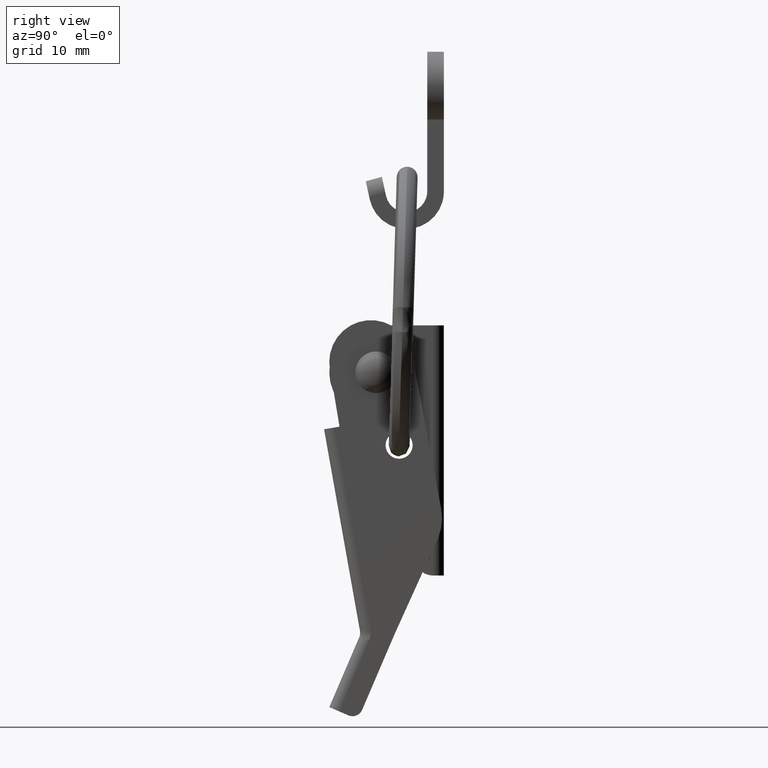
[diagram: clean part render]
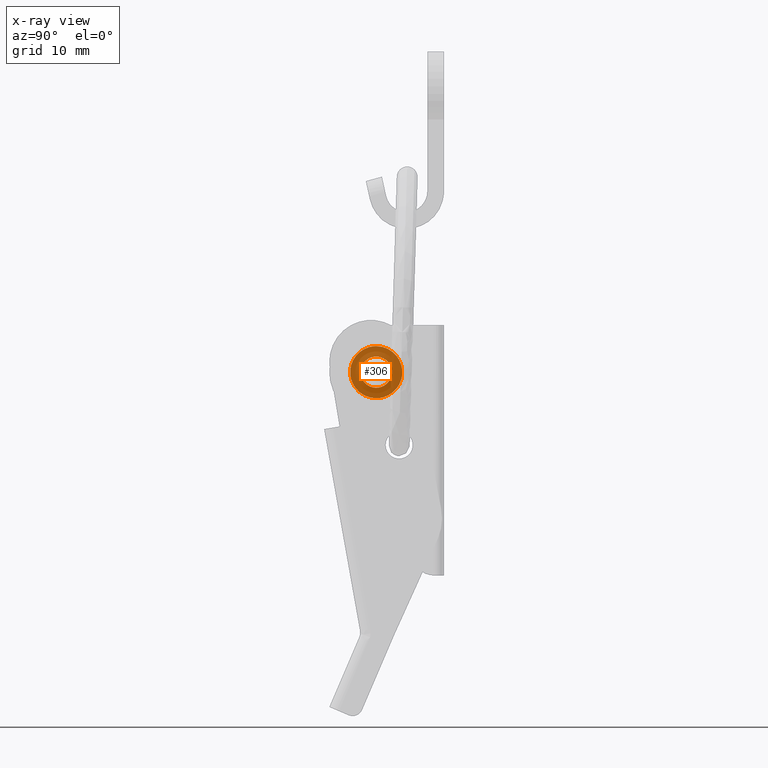
[diagram: x-ray — body ghosted, one internal face saturated and labeled with its STEP entity id]
A machine part, right view, then the same camera in x-ray: the body is ghosted and one INTERNAL B-rep face — a face not visible from any outside direction — is saturated and labeled: STEP entity #306.
In plain terms, the highlighted face is a freeform B-spline surface patch.
Its self-contained STEP definition (entity closure, byte-faithful):
#66=CARTESIAN_POINT('',(-5.999999999999999,1.489514289542856,0.177051352009068));
#67=VERTEX_POINT('',#66);
#68=CARTESIAN_POINT('',(-6.0,0.0,-1.500000000000200));
#69=VERTEX_POINT('',#68);
#70=CARTESIAN_POINT('',(-5.999999999999999,1.489514289542856,0.177051352009068));
#71=CARTESIAN_POINT('',(-5.999999999999999,1.500000000000201,0.088836179502037));
#72=CARTESIAN_POINT('',(-6.0,1.500000000000200,0.0));
#73=CARTESIAN_POINT('',(-6.0,1.500000000000201,-1.500000000000201));
#74=CARTESIAN_POINT('',(-6.0,0.0,-1.500000000000200));
#82=(BOUNDED_CURVE()B_SPLINE_CURVE(2,(#70,#71,#72,#73,#74),.UNSPECIFIED.,.F.,.U.)B_SPLINE_CURVE_WITH_KNOTS((3,2,3),(0.229562473510219,0.250000000000000,0.500000000000000),.UNSPECIFIED.)CURVE()GEOMETRIC_REPRESENTATION_ITEM()RATIONAL_B_SPLINE_CURVE((0.956026754177252,0.976055948327292,1.0,0.707106781186548,1.0))REPRESENTATION_ITEM(''));
#83=EDGE_CURVE('',#67,#69,#82,.T.);
#124=CARTESIAN_POINT('',(-6.0,-1.497202197614067,-0.091572809611843));
#125=VERTEX_POINT('',#124);
#131=CARTESIAN_POINT('',(-6.0,0.0,-1.500000000000200));
#132=CARTESIAN_POINT('',(-6.000000000000001,-1.411059099774163,-1.500000000000201));
#133=CARTESIAN_POINT('',(-6.000000000000001,-1.497202197614068,-0.091572809611843));
#141=(BOUNDED_CURVE()B_SPLINE_CURVE(2,(#131,#132,#133),.UNSPECIFIED.,.F.,.U.)B_SPLINE_CURVE_WITH_KNOTS((3,3),(0.500000000000000,0.739332962170620),.UNSPECIFIED.)CURVE()GEOMETRIC_REPRESENTATION_ITEM()RATIONAL_B_SPLINE_CURVE((1.0,0.719603993366756,0.976072041520288))REPRESENTATION_ITEM(''));
#142=EDGE_CURVE('',#69,#125,#141,.T.);
#165=CARTESIAN_POINT('',(-6.0,0.0,1.500000000000200));
#166=VERTEX_POINT('',#165);
#167=CARTESIAN_POINT('',(-6.0,0.0,1.500000000000200));
#168=CARTESIAN_POINT('',(-6.0,1.332261788884162,1.500000000000200));
#169=CARTESIAN_POINT('',(-5.999999999999999,1.489514289542856,0.177051352009068));
#177=(BOUNDED_CURVE()B_SPLINE_CURVE(2,(#167,#168,#169),.UNSPECIFIED.,.F.,.U.)B_SPLINE_CURVE_WITH_KNOTS((3,3),(0.0,0.229562473510219),.UNSPECIFIED.)CURVE()GEOMETRIC_REPRESENTATION_ITEM()RATIONAL_B_SPLINE_CURVE((1.0,0.731050832859256,0.956026754177252))REPRESENTATION_ITEM(''));
#178=EDGE_CURVE('',#166,#67,#177,.T.);
#180=CARTESIAN_POINT('',(-6.0,-1.497202197614068,-0.091572809611843));
#181=CARTESIAN_POINT('',(-6.0,-1.500000000000201,-0.045829145258303));
#182=CARTESIAN_POINT('',(-6.0,-1.500000000000200,0.0));
#183=CARTESIAN_POINT('',(-6.0,-1.500000000000201,1.500000000000201));
#184=CARTESIAN_POINT('',(-6.0,0.0,1.500000000000200));
#192=(BOUNDED_CURVE()B_SPLINE_CURVE(2,(#180,#181,#182,#183,#184),.UNSPECIFIED.,.F.,.U.)B_SPLINE_CURVE_WITH_KNOTS((3,2,3),(0.739332962170620,0.750000000000000,1.0),.UNSPECIFIED.)CURVE()GEOMETRIC_REPRESENTATION_ITEM()RATIONAL_B_SPLINE_CURVE((0.976072041520290,0.987502787819793,1.0,0.707106781186548,1.0))REPRESENTATION_ITEM(''));
#193=EDGE_CURVE('',#125,#166,#192,.T.);
#254=CARTESIAN_POINT('',(-6.0,0.0,2.500000876363235));
#255=VERTEX_POINT('',#254);
#256=CARTESIAN_POINT('',(-6.0,0.0,-2.500000876363235));
#257=VERTEX_POINT('',#256);
#258=CARTESIAN_POINT('',(-6.0,0.0,2.500000876363235));
#259=CARTESIAN_POINT('',(-6.0,2.500000876363235,2.500000876363235));
#260=CARTESIAN_POINT('',(-6.0,2.500000876363235,0.0));
#261=CARTESIAN_POINT('',(-6.0,2.500000876363235,-2.500000876363235));
#262=CARTESIAN_POINT('',(-6.0,0.0,-2.500000876363235));
#270=(BOUNDED_CURVE()B_SPLINE_CURVE(2,(#258,#259,#260,#261,#262),.UNSPECIFIED.,.F.,.U.)B_SPLINE_CURVE_WITH_KNOTS((3,2,3),(0.0,0.250000000000000,0.500000000000000),.UNSPECIFIED.)CURVE()GEOMETRIC_REPRESENTATION_ITEM()RATIONAL_B_SPLINE_CURVE((1.0,0.707106781186547,1.0,0.707106781186547,1.0))REPRESENTATION_ITEM(''));
#271=EDGE_CURVE('',#255,#257,#270,.T.);
#273=CARTESIAN_POINT('',(-6.0,0.0,-2.500000876363235));
#274=CARTESIAN_POINT('',(-6.0,-2.500000876363235,-2.500000876363235));
#275=CARTESIAN_POINT('',(-6.0,-2.500000876363235,0.0));
#276=CARTESIAN_POINT('',(-6.0,-2.500000876363235,2.500000876363235));
#277=CARTESIAN_POINT('',(-6.0,0.0,2.500000876363235));
#285=(BOUNDED_CURVE()B_SPLINE_CURVE(2,(#273,#274,#275,#276,#277),.UNSPECIFIED.,.F.,.U.)B_SPLINE_CURVE_WITH_KNOTS((3,2,3),(0.500000000000000,0.750000000000000,1.0),.UNSPECIFIED.)CURVE()GEOMETRIC_REPRESENTATION_ITEM()RATIONAL_B_SPLINE_CURVE((1.0,0.707106781186547,1.0,0.707106781186547,1.0))REPRESENTATION_ITEM(''));
#286=EDGE_CURVE('',#257,#255,#285,.T.);
#291=CARTESIAN_POINT('',(-6.0,-2.749751048093698,-2.749751048093826));
#292=CARTESIAN_POINT('',(-6.0,-2.749751048093698,2.749751092797326));
#293=CARTESIAN_POINT('',(-6.0,2.749751092797197,-2.749751048093826));
#294=CARTESIAN_POINT('',(-6.0,2.749751092797197,2.749751092797326));
#295=B_SPLINE_SURFACE_WITH_KNOTS('',1,1,((#291,#293),(#292,#294)),.UNSPECIFIED.,.F.,.F.,.U.,(2,2),(2,2),(0.0,5.499502140891152),(0.0,5.499502140890895),.UNSPECIFIED.);
#296=ORIENTED_EDGE('',*,*,#286,.F.);
#297=ORIENTED_EDGE('',*,*,#271,.F.);
#298=EDGE_LOOP('',(#296,#297));
#299=FACE_OUTER_BOUND('',#298,.T.);
#300=ORIENTED_EDGE('',*,*,#142,.T.);
#301=ORIENTED_EDGE('',*,*,#193,.T.);
#302=ORIENTED_EDGE('',*,*,#178,.T.);
#303=ORIENTED_EDGE('',*,*,#83,.T.);
#304=EDGE_LOOP('',(#300,#301,#302,#303));
#305=FACE_BOUND('',#304,.T.);
#306=ADVANCED_FACE('',(#299,#305),#295,.F.);